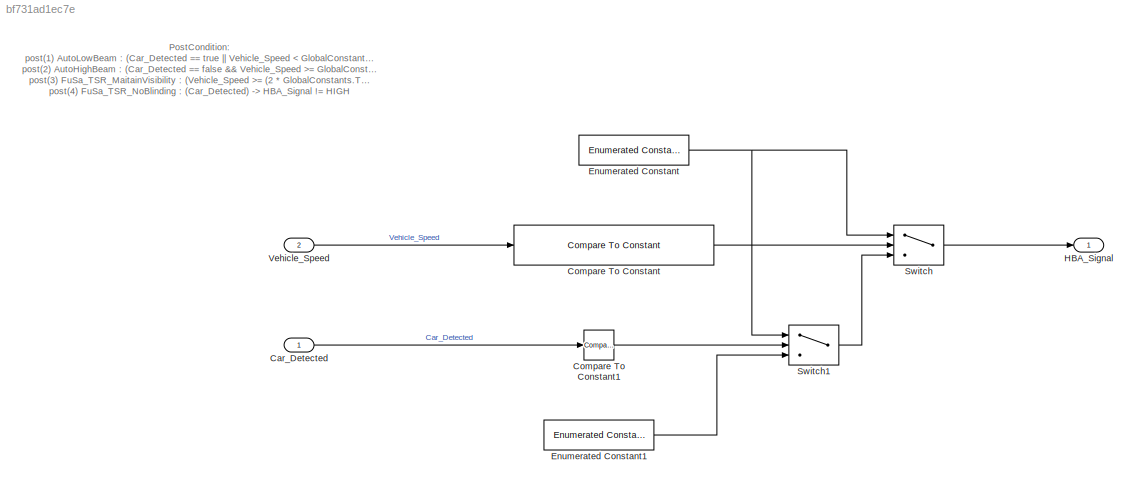
MODEL slx_bf731ad1ec7e
KIND model
CONFIG AbsTol = auto
CONFIG EnableMultiTasking = off
CONFIG FixedStep = 1
CONFIG InitFcn = checkUnitMismatch
CONFIG MaxStep = auto
CONFIG MinStep = auto
CONFIG PreLoadFcn = sl_refresh_customizations\nenum_Simulink\nsimulinkExportUnitCs\nE_Global_Constants\nA_Data_Dictionary\n\nbus_Simulink\n\n\n\n\n\n\n\n\n
CONFIG RelTol = 1e-3
CONFIG SampleTimeConstraint = Unconstrained
CONFIG Solver = FixedStepDiscrete
CONFIG SolverName = FixedStepDiscrete
CONFIG StartTime = 0.0
CONFIG StopTime = 10.0
WORKSPACE source: MAT-file member
WORKSPACE ESD_URL = 'http://127.0.0.1:63320/node?ref=r%3A92f02917-2939-4625-878a-0cf4bf3cdc0b%28AHCDemo._30_Implementation%29%2F458597115437889651'
BLOCK [Inport] Car_Detected
  IconDisplay = Port number
  OutDataTypeStr = boolean
BLOCK [Reference] Compare To Constant  REF=simulink/Logic and Bit
Operations/Compare
To Constant
  Ports = [1, 1]
  SourceBlock = simulink/Logic and Bit\nOperations/Compare\nTo Constant
  SourceProductBaseCode = SL
  SourceProductName = Simulink
  SourceType = Compare To Constant
BLOCK [Reference] Compare To Constant1  REF=simulink/Logic and Bit
Operations/Compare
To Constant
  Ports = [1, 1]
  SourceBlock = simulink/Logic and Bit\nOperations/Compare\nTo Constant
  SourceProductBaseCode = SL
  SourceProductName = Simulink
  SourceType = Compare To Constant
BLOCK [Reference] Enumerated Constant  REF=simulink/Sources/Enumerated
Constant
  Ports = [0, 1]
  SourceBlock = simulink/Sources/Enumerated\nConstant
  SourceProductBaseCode = SL
  SourceProductName = Simulink
  SourceType = Enumerated Constant
BLOCK [Reference] Enumerated Constant1  REF=simulink/Sources/Enumerated
Constant
  Ports = [0, 1]
  SourceBlock = simulink/Sources/Enumerated\nConstant
  SourceProductBaseCode = SL
  SourceProductName = Simulink
  SourceType = Enumerated Constant
BLOCK [Outport] HBA_Signal
  IconDisplay = Port number
  OutDataTypeStr = Enum: eBeamState_t
BLOCK [Switch] Switch
  Criteria = u2 > Threshold
  InputSameDT = off
  SaturateOnIntegerOverflow = off
BLOCK [Switch] Switch1
  Criteria = u2 > Threshold
  InputSameDT = off
  SaturateOnIntegerOverflow = off
BLOCK [Inport] Vehicle_Speed
  AttributesFormatString = (kmph)
  IconDisplay = Port number
  OutDataTypeStr = double
  Port = 2
  Unit = kmph
  UserDataPersistent = on
ANNOTATION (root): PostCondition: post(1) AutoLowBeam : (Car_Detected == true || Vehicle_Speed HBA_Signal == LOW post(2) AutoHighBeam : (Car_Detected == false && Vehicle_Speed >= GlobalConstants.Threshold_Speed) -> HBA_Signal == HIGH post(3) FuSa_TSR_MaitainVisibility : (Vehicle_Speed >= (2 * GlobalConstants.Threshold_Speed)) && (Car_Detected != true) -> (HBA_Signal != LOW) post(4) FuSa_TSR_NoBlinding : (Car_Detecte...<+24ch>
LINE Car_Detected:1 -> Compare To Constant1:1
LINE Compare To Constant1:1 -> Switch1:2
LINE Compare To Constant:1 -> Switch:2
LINE Enumerated Constant1:1 -> Switch1:3
NET Enumerated Constant:1 -> Switch1:1, Switch:1
LINE Switch1:1 -> Switch:3
LINE Switch:1 -> HBA_Signal:1
LINE Vehicle_Speed:1 -> Compare To Constant:1
note: NET lines group one-source signal fan-out (src -> all destinations, sorted); 1:1 wires keep LINE
